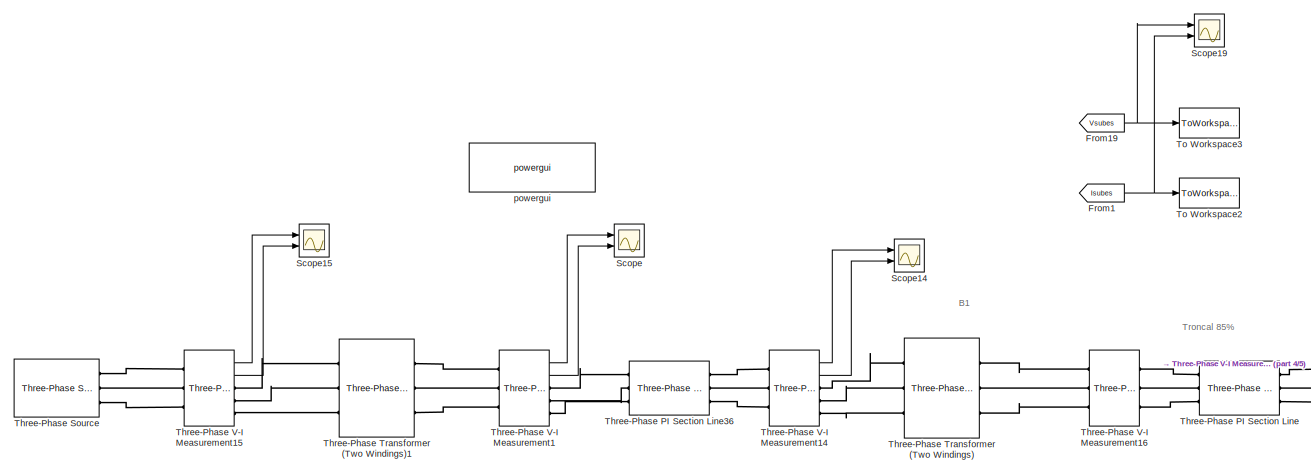
[diagram: root canvas - part 1/5, top left region]
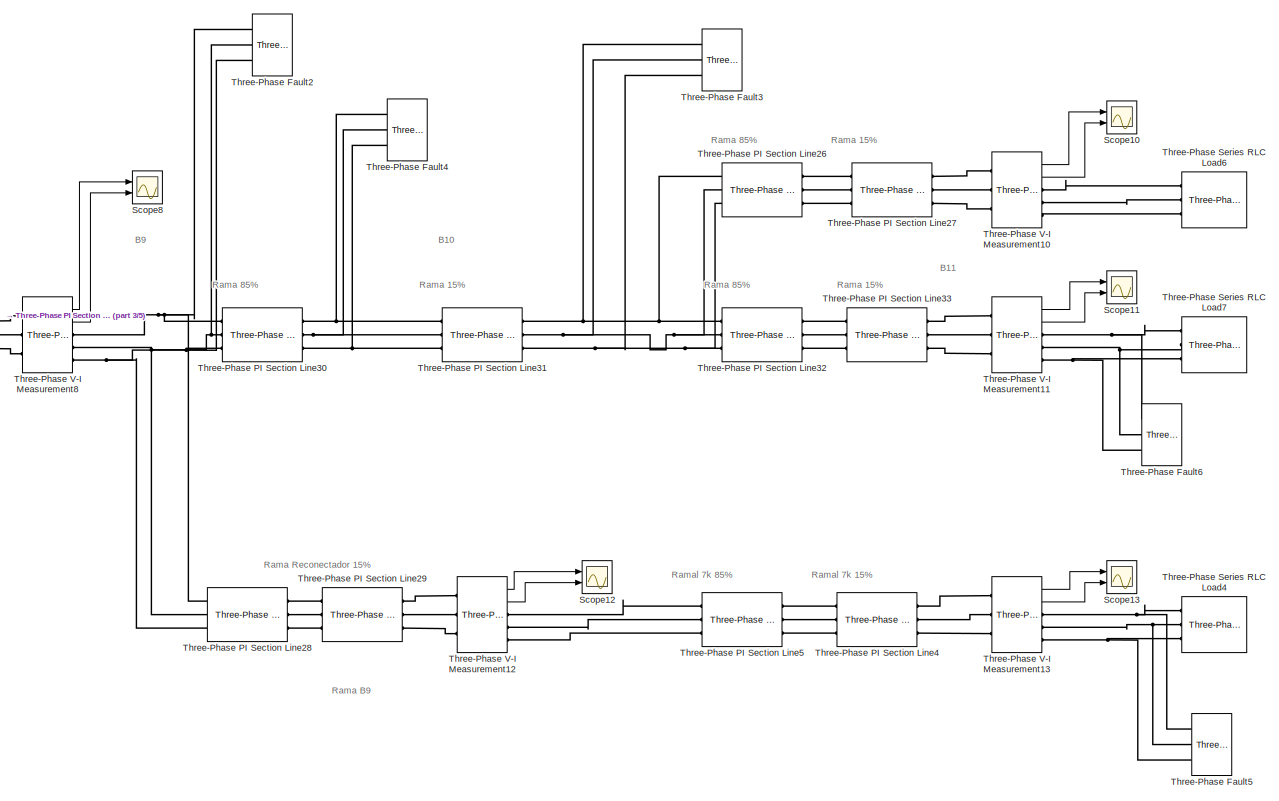
[diagram: root canvas - part 2/5, right side, full height]
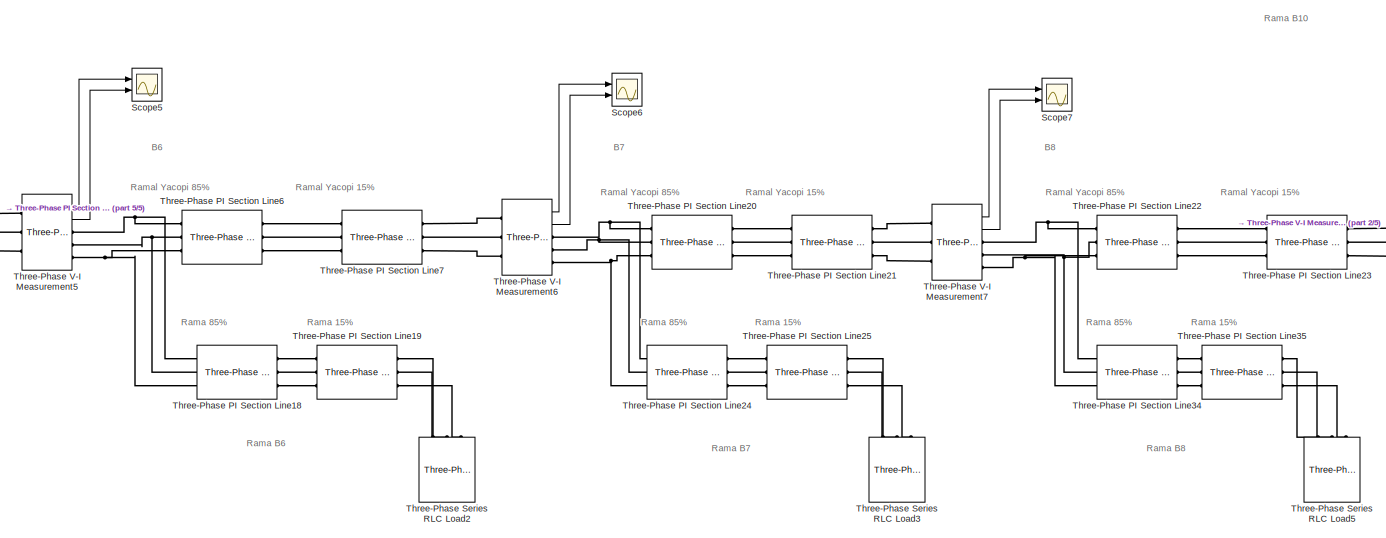
[diagram: root canvas - part 3/5, middle right region]
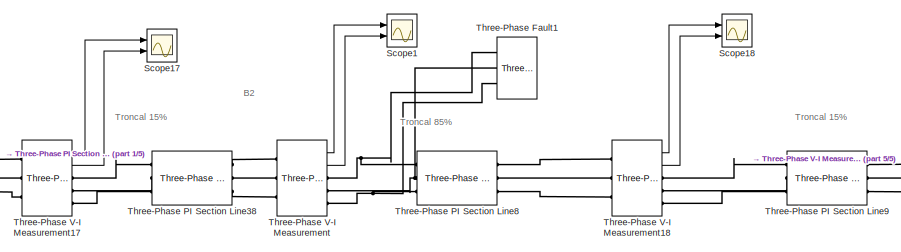
[diagram: root canvas - part 4/5, middle left region]
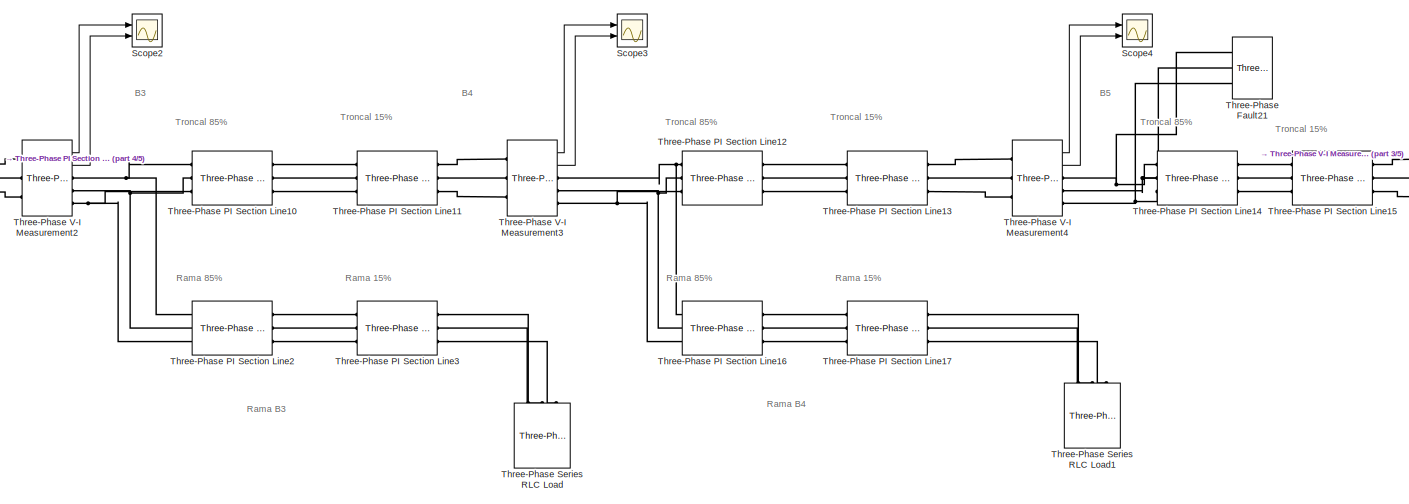
[diagram: root canvas - part 5/5, central region]
MODEL slx_1c80172d5876
KIND model
CONFIG AbsTol = auto
CONFIG FixedStep = auto
CONFIG MaxStep = auto
CONFIG MinStep = auto
CONFIG RelTol = 1e-3
CONFIG SampleTimeConstraint = Unconstrained
CONFIG Solver = ode45
CONFIG SolverMode = Auto
CONFIG SolverName = ode45
CONFIG StartTime = 0.0
CONFIG StopTime = 0.16
BLOCK [From] From1
  GotoTag = Isubes
  TagVisibility = global
BLOCK [From] From19
  GotoTag = Vsubes
  TagVisibility = global
BLOCK [Scope] Scope
  Floating = off
  NumInputPorts = 2
  Ports = [2]
  YMax = 5~5
  YMin = -5~-5
BLOCK [Scope] Scope1
  Floating = off
  NumInputPorts = 2
  Ports = [2]
  SaveName = ScopeData1
  YMax = 5~5
  YMin = -5~-5
BLOCK [Scope] Scope10
  Floating = off
  NumInputPorts = 2
  Ports = [2]
  SaveName = ScopeData10
  YMax = 5~5
  YMin = -5~-5
BLOCK [Scope] Scope11
  Floating = off
  NumInputPorts = 2
  Ports = [2]
  SaveName = ScopeData11
  YMax = 5~5
  YMin = -5~-5
BLOCK [Scope] Scope12
  Floating = off
  NumInputPorts = 2
  Ports = [2]
  SaveName = ScopeData12
  YMax = 5~5
  YMin = -5~-5
BLOCK [Scope] Scope13
  Floating = off
  NumInputPorts = 2
  Ports = [2]
  SaveName = ScopeData13
  YMax = 5~5
  YMin = -5~-5
BLOCK [Scope] Scope14
  Floating = off
  NumInputPorts = 2
  Ports = [2]
  SaveName = ScopeData14
  YMax = 5~5
  YMin = -5~-5
BLOCK [Scope] Scope15
  Floating = off
  NumInputPorts = 2
  Ports = [2]
  SaveName = ScopeData15
  YMax = 100000~1.1
  YMin = -175000~-1
BLOCK [Scope] Scope17
  Floating = off
  NumInputPorts = 2
  Ports = [2]
  SaveName = ScopeData17
  YMax = 5~5
  YMin = -5~-5
BLOCK [Scope] Scope18
  Floating = off
  NumInputPorts = 2
  Ports = [2]
  SaveName = ScopeData18
  YMax = 5~5
  YMin = -5~-5
BLOCK [Scope] Scope19
  Floating = off
  NumInputPorts = 2
  Ports = [2]
  SaveName = ScopeData19
  TimeRange = 0.03177083333333333
  YMax = 4000~5
  YMin = -4000~-5
BLOCK [Scope] Scope2
  Floating = off
  NumInputPorts = 2
  Ports = [2]
  SaveName = ScopeData2
  YMax = 5~5
  YMin = -5~-5
BLOCK [Scope] Scope3
  Floating = off
  NumInputPorts = 2
  Ports = [2]
  SaveName = ScopeData3
  YMax = 5~5
  YMin = -5~-5
BLOCK [Scope] Scope4
  Floating = off
  NumInputPorts = 2
  Ports = [2]
  SaveName = ScopeData4
  YMax = 5~5
  YMin = -5~-5
BLOCK [Scope] Scope5
  Floating = off
  NumInputPorts = 2
  Ports = [2]
  SaveName = ScopeData5
  YMax = 5~5
  YMin = -5~-5
BLOCK [Scope] Scope6
  Floating = off
  NumInputPorts = 2
  Ports = [2]
  SaveName = ScopeData6
  YMax = 5~5
  YMin = -5~-5
BLOCK [Scope] Scope7
  Floating = off
  NumInputPorts = 2
  Ports = [2]
  SaveName = ScopeData7
  YMax = 5~5
  YMin = -5~-5
BLOCK [Scope] Scope8
  Floating = off
  NumInputPorts = 2
  Ports = [2]
  SaveName = ScopeData8
  YMax = 5~5
  YMin = -5~-5
BLOCK [Reference] Three-Phase Fault1  REF=powerlib/Elements/Three-Phase Fault
  External = off
  FaultA = off
  FaultB = off
  FaultC = off
  FaultResistance = 0.010
  GroundFault = off
  GroundResistance = 0.01
  InitialStates = 0
  Measurements = None
  Ports = [0, 0, 0, 0, 0, 3]
  SnubberCapacitance = inf
  SnubberResistance = 1e6
  SourceBlock = powerlib/Elements/Three-Phase Fault
  SourceType = Three-Phase Fault
  SwitchStatus = NaN
  SwitchTimes = [3/60  6/60]
BLOCK [Reference] Three-Phase Fault2  REF=powerlib/Elements/Three-Phase Fault
  External = off
  FaultA = off
  FaultB = off
  FaultC = off
  FaultResistance = 0.01
  GroundFault = off
  GroundResistance = 0.01
  InitialStates = 0
  Measurements = None
  Ports = [0, 0, 0, 0, 0, 3]
  SnubberCapacitance = inf
  SnubberResistance = 1e6
  SourceBlock = powerlib/Elements/Three-Phase Fault
  SourceType = Three-Phase Fault
  SwitchStatus = NaN
  SwitchTimes = [3/60  6/60]
BLOCK [Reference] Three-Phase Fault21  REF=powerlib/Elements/Three-Phase Fault
  External = off
  FaultA = off
  FaultB = off
  FaultC = off
  FaultResistance = 0.001
  GroundFault = off
  GroundResistance = 0.01
  InitialStates = 0
  Measurements = None
  Ports = [0, 0, 0, 0, 0, 3]
  SnubberCapacitance = inf
  SnubberResistance = 1e6
  SourceBlock = powerlib/Elements/Three-Phase Fault
  SourceType = Three-Phase Fault
  SwitchStatus = NaN
  SwitchTimes = [3/60  6/60]
BLOCK [Reference] Three-Phase Fault3  REF=powerlib/Elements/Three-Phase Fault
  External = off
  FaultA = off
  FaultB = off
  FaultC = off
  FaultResistance = 20
  GroundFault = off
  GroundResistance = 0.01
  InitialStates = 0
  Measurements = None
  Ports = [0, 0, 0, 0, 0, 3]
  SnubberCapacitance = inf
  SnubberResistance = 1e6
  SourceBlock = powerlib/Elements/Three-Phase Fault
  SourceType = Three-Phase Fault
  SwitchStatus = NaN
  SwitchTimes = [3/60  6/60]
BLOCK [Reference] Three-Phase Fault4  REF=powerlib/Elements/Three-Phase Fault
  External = off
  FaultA = off
  FaultB = off
  FaultC = off
  FaultResistance = 0.01
  GroundFault = off
  GroundResistance = 0.01
  InitialStates = 0
  Measurements = None
  Ports = [0, 0, 0, 0, 0, 3]
  SnubberCapacitance = inf
  SnubberResistance = 1e6
  SourceBlock = powerlib/Elements/Three-Phase Fault
  SourceType = Three-Phase Fault
  SwitchStatus = NaN
  SwitchTimes = [3/60  6/60]
BLOCK [Reference] Three-Phase Fault5  REF=powerlib/Elements/Three-Phase Fault
  External = off
  FaultA = off
  FaultB = off
  FaultC = off
  FaultResistance = 5
  GroundFault = off
  GroundResistance = 0.01
  InitialStates = 0
  Measurements = None
  Ports = [0, 0, 0, 0, 0, 3]
  SnubberCapacitance = inf
  SnubberResistance = 1e6
  SourceBlock = powerlib/Elements/Three-Phase Fault
  SourceType = Three-Phase Fault
  SwitchStatus = NaN
  SwitchTimes = [3/60  6/60]
BLOCK [Reference] Three-Phase Fault6  REF=powerlib/Elements/Three-Phase Fault
  External = off
  FaultA = off
  FaultB = off
  FaultC = on
  FaultResistance = 0.001
  GroundFault = on
  GroundResistance = 0.01
  InitialStates = 0
  Measurements = None
  Ports = [0, 0, 0, 0, 0, 3]
  SnubberCapacitance = inf
  SnubberResistance = 1e6
  SourceBlock = powerlib/Elements/Three-Phase Fault
  SourceType = Three-Phase Fault
  SwitchStatus = NaN
  SwitchTimes = [3/60  6/60]
BLOCK [Reference] Three-Phase PI Section Line  REF=powerlib/Elements/Three-Phase
PI Section Line
  AttributesFormatString = \n
  Capacitances = [0.1e-12 0.1e-12]
  Frequency = 60
  Inductances = [0.001327  0.002029]
  LConnTagsString = a|b|c
  Length = 0.224281
  Ports = [0, 0, 0, 0, 0, 3, 3]
  RConnTagsString = A|B|C
  Resistances = [0.4153 0.4148]
  SourceBlock = powerlib/Elements/Three-Phase\nPI Section Line
  SourceType = Three-Phase PI Section Line
BLOCK [Reference] Three-Phase PI Section Line10  REF=powerlib/Elements/Three-Phase
PI Section Line
  AttributesFormatString = \n
  Capacitances = [0.1e-12 0.1e-12]
  Frequency = 60
  Inductances = [0.001327  0.002029]
  LConnTagsString = a|b|c
  Length = 2.627724
  Ports = [0, 0, 0, 0, 0, 3, 3]
  RConnTagsString = A|B|C
  Resistances = [ 0.4153 0.4148]
  SourceBlock = powerlib/Elements/Three-Phase\nPI Section Line
  SourceType = Three-Phase PI Section Line
BLOCK [Reference] Three-Phase PI Section Line11  REF=powerlib/Elements/Three-Phase
PI Section Line
  AttributesFormatString = \n
  Capacitances = [0.1e-12 0.1e-12]
  Frequency = 60
  Inductances = [0.001263 0.002392]
  LConnTagsString = a|b|c
  Length = 0.463716
  Ports = [0, 0, 0, 0, 0, 3, 3]
  RConnTagsString = A|B|C
  Resistances = [0.8315 0.8307]
  SourceBlock = powerlib/Elements/Three-Phase\nPI Section Line
  SourceType = Three-Phase PI Section Line
BLOCK [Reference] Three-Phase PI Section Line12  REF=powerlib/Elements/Three-Phase
PI Section Line
  AttributesFormatString = \n
  Capacitances = [0.1e-12 0.1e-12]
  Frequency = 60
  Inductances = [0.001327  0.002029]
  LConnTagsString = a|b|c
  Length = 6.782796
  Ports = [0, 0, 0, 0, 0, 3, 3]
  RConnTagsString = A|B|C
  Resistances = [ 0.4153 0.4148]
  SourceBlock = powerlib/Elements/Three-Phase\nPI Section Line
  SourceType = Three-Phase PI Section Line
BLOCK [Reference] Three-Phase PI Section Line13  REF=powerlib/Elements/Three-Phase
PI Section Line
  AttributesFormatString = \n
  Capacitances = [0.1e-12 0.1e-12]
  Frequency = 60
  Inductances = [0.001263 0.002392]
  LConnTagsString = a|b|c
  Length = 1.196964
  Ports = [0, 0, 0, 0, 0, 3, 3]
  RConnTagsString = A|B|C
  Resistances = [0.8315 0.8307]
  SourceBlock = powerlib/Elements/Three-Phase\nPI Section Line
  SourceType = Three-Phase PI Section Line
BLOCK [Reference] Three-Phase PI Section Line14  REF=powerlib/Elements/Three-Phase
PI Section Line
  AttributesFormatString = \n
  Capacitances = [0.1e-12 0.1e-12]
  Frequency = 60
  Inductances = [0.001327  0.002029]
  LConnTagsString = a|b|c
  Length = 2.529787
  Ports = [0, 0, 0, 0, 0, 3, 3]
  RConnTagsString = A|B|C
  Resistances = [ 0.4153 0.4148]
  SourceBlock = powerlib/Elements/Three-Phase\nPI Section Line
  SourceType = Three-Phase PI Section Line
BLOCK [Reference] Three-Phase PI Section Line15  REF=powerlib/Elements/Three-Phase
PI Section Line
  AttributesFormatString = \n
  Capacitances = [0.1e-12 0.1e-12]
  Frequency = 60
  Inductances = [0.001263 0.002392]
  LConnTagsString = a|b|c
  Length = 0.446433
  Ports = [0, 0, 0, 0, 0, 3, 3]
  RConnTagsString = A|B|C
  Resistances = [0.8315 0.8307]
  SourceBlock = powerlib/Elements/Three-Phase\nPI Section Line
  SourceType = Three-Phase PI Section Line
BLOCK [Reference] Three-Phase PI Section Line16  REF=powerlib/Elements/Three-Phase
PI Section Line
  AttributesFormatString = \n
  Capacitances = [0.1e-12 0.1e-12]
  Frequency = 60
  Inductances = [0.001096 0.002727]
  LConnTagsString = a|b|c
  Length = 6.782796
  Ports = [0, 0, 0, 0, 0, 3, 3]
  RConnTagsString = A|B|C
  Resistances = [0.8315 0.8307]
  SourceBlock = powerlib/Elements/Three-Phase\nPI Section Line
  SourceType = Three-Phase PI Section Line
BLOCK [Reference] Three-Phase PI Section Line17  REF=powerlib/Elements/Three-Phase
PI Section Line
  AttributesFormatString = \n
  Capacitances = [0.1e-12 0.1e-12]
  Frequency = 60
  Inductances = [0.001311 0.002296]
  LConnTagsString = a|b|c
  Length = 1.196964
  Ports = [0, 0, 0, 0, 0, 3, 3]
  RConnTagsString = A|B|C
  Resistances = [0.8315 0.8307]
  SourceBlock = powerlib/Elements/Three-Phase\nPI Section Line
  SourceType = Three-Phase PI Section Line
BLOCK [Reference] Three-Phase PI Section Line18  REF=powerlib/Elements/Three-Phase
PI Section Line
  AttributesFormatString = \n
  Capacitances = [0.1e-12 0.1e-12]
  Frequency = 60
  Inductances = [0.001096 0.002727]
  LConnTagsString = a|b|c
  Length = 6.82142765
  Ports = [0, 0, 0, 0, 0, 3, 3]
  RConnTagsString = A|B|C
  Resistances = [0.8315 0.8307]
  SourceBlock = powerlib/Elements/Three-Phase\nPI Section Line
  SourceType = Three-Phase PI Section Line
BLOCK [Reference] Three-Phase PI Section Line19  REF=powerlib/Elements/Three-Phase
PI Section Line
  AttributesFormatString = \n
  Capacitances = [0.1e-12 0.1e-12]
  Frequency = 60
  Inductances = [0.001311 0.002296]
  LConnTagsString = a|b|c
  Length = 1.203781
  Ports = [0, 0, 0, 0, 0, 3, 3]
  RConnTagsString = A|B|C
  Resistances = [0.8315 0.8307]
  SourceBlock = powerlib/Elements/Three-Phase\nPI Section Line
  SourceType = Three-Phase PI Section Line
BLOCK [Reference] Three-Phase PI Section Line2  REF=powerlib/Elements/Three-Phase
PI Section Line
  AttributesFormatString = \n
  Capacitances = [0.1e-12 0.1e-12]
  Frequency = 60
  Inductances = [0.001096 0.002727]
  LConnTagsString = a|b|c
  Length = 6.5409982
  Ports = [0, 0, 0, 0, 0, 3, 3]
  RConnTagsString = A|B|C
  Resistances = [0.8315 0.8307]
  SourceBlock = powerlib/Elements/Three-Phase\nPI Section Line
  SourceType = Three-Phase PI Section Line
BLOCK [Reference] Three-Phase PI Section Line20  REF=powerlib/Elements/Three-Phase
PI Section Line
  AttributesFormatString = \n
  Capacitances = [0.1e-12 0.1e-12]
  Frequency = 60
  Inductances = [0.001023 0.002655]
  LConnTagsString = a|b|c
  Length = 1.27075
  Ports = [0, 0, 0, 0, 0, 3, 3]
  RConnTagsString = A|B|C
  Resistances = [0.416 0.4151]
  SourceBlock = powerlib/Elements/Three-Phase\nPI Section Line
  SourceType = Three-Phase PI Section Line
BLOCK [Reference] Three-Phase PI Section Line21  REF=powerlib/Elements/Three-Phase
PI Section Line
  AttributesFormatString = \n
  Capacitances = [0.1e-12 0.1e-12]
  Frequency = 60
  Inductances = [0.001239 0.002225]
  LConnTagsString = a|b|c
  Length = 0.22425
  Ports = [0, 0, 0, 0, 0, 3, 3]
  RConnTagsString = A|B|C
  Resistances = [0.416 0.4151]
  SourceBlock = powerlib/Elements/Three-Phase\nPI Section Line
  SourceType = Three-Phase PI Section Line
BLOCK [Reference] Three-Phase PI Section Line22  REF=powerlib/Elements/Three-Phase
PI Section Line
  AttributesFormatString = \n
  Capacitances = [0.1e-12 0.1e-12]
  Frequency = 60
  Inductances = [0.001023 0.002655]
  LConnTagsString = a|b|c
  Length = 3.753243
  Ports = [0, 0, 0, 0, 0, 3, 3]
  RConnTagsString = A|B|C
  Resistances = [0.416 0.4151]
  SourceBlock = powerlib/Elements/Three-Phase\nPI Section Line
  SourceType = Three-Phase PI Section Line
BLOCK [Reference] Three-Phase PI Section Line23  REF=powerlib/Elements/Three-Phase
PI Section Line
  AttributesFormatString = \n
  Capacitances = [0.1e-12 0.1e-12]
  Frequency = 60
  Inductances = [0.001239 0.002225]
  LConnTagsString = a|b|c
  Length = 0.662337
  Ports = [0, 0, 0, 0, 0, 3, 3]
  RConnTagsString = A|B|C
  Resistances = [0.416 0.4151]
  SourceBlock = powerlib/Elements/Three-Phase\nPI Section Line
  SourceType = Three-Phase PI Section Line
BLOCK [Reference] Three-Phase PI Section Line24  REF=powerlib/Elements/Three-Phase
PI Section Line
  AttributesFormatString = \n
  Capacitances = [0.1e-12 0.1e-12]
  Frequency = 60
  Inductances = [0.001096 0.002727]
  LConnTagsString = a|b|c
  Length = 3.3978495
  Ports = [0, 0, 0, 0, 0, 3, 3]
  RConnTagsString = A|B|C
  Resistances = [0.8315 0.8307]
  SourceBlock = powerlib/Elements/Three-Phase\nPI Section Line
  SourceType = Three-Phase PI Section Line
BLOCK [Reference] Three-Phase PI Section Line25  REF=powerlib/Elements/Three-Phase
PI Section Line
  AttributesFormatString = \n
  Capacitances = [0.1e-12 0.1e-12]
  Frequency = 60
  Inductances = [0.001311 0.002296]
  LConnTagsString = a|b|c
  Length = 0.22425
  Ports = [0, 0, 0, 0, 0, 3, 3]
  RConnTagsString = A|B|C
  Resistances = [0.8315 0.8307]
  SourceBlock = powerlib/Elements/Three-Phase\nPI Section Line
  SourceType = Three-Phase PI Section Line
BLOCK [Reference] Three-Phase PI Section Line26  REF=powerlib/Elements/Three-Phase
PI Section Line
  AttributesFormatString = \n
  Capacitances = [0.1e-12 0.1e-12]
  Frequency = 60
  Inductances = [0.001096 0.002727]
  LConnTagsString = a|b|c
  Length = 6.3333585
  Ports = [0, 0, 0, 0, 0, 3, 3]
  RConnTagsString = A|B|C
  Resistances = [0.8315 0.8307]
  SourceBlock = powerlib/Elements/Three-Phase\nPI Section Line
  SourceType = Three-Phase PI Section Line
BLOCK [Reference] Three-Phase PI Section Line27  REF=powerlib/Elements/Three-Phase
PI Section Line
  AttributesFormatString = \n
  Capacitances = [0.1e-12 0.1e-12]
  Frequency = 60
  Inductances = [0.001311 0.002296]
  LConnTagsString = a|b|c
  Length = 1.117652
  Ports = [0, 0, 0, 0, 0, 3, 3]
  RConnTagsString = A|B|C
  Resistances = [0.8315 0.8307]
  SourceBlock = powerlib/Elements/Three-Phase\nPI Section Line
  SourceType = Three-Phase PI Section Line
BLOCK [Reference] Three-Phase PI Section Line28  REF=powerlib/Elements/Three-Phase
PI Section Line
  AttributesFormatString = \n
  Capacitances = [0.1e-12 0.1e-12]
  Frequency = 60
  Inductances = [0.001023 0.002655]
  LConnTagsString = a|b|c
  Length = 2.818592
  Ports = [0, 0, 0, 0, 0, 3, 3]
  RConnTagsString = A|B|C
  Resistances = [0.416 0.4151]
  SourceBlock = powerlib/Elements/Three-Phase\nPI Section Line
  SourceType = Three-Phase PI Section Line
BLOCK [Reference] Three-Phase PI Section Line29  REF=powerlib/Elements/Three-Phase
PI Section Line
  AttributesFormatString = \n
  Capacitances = [0.1e-12 0.1e-12]
  Frequency = 60
  Inductances = [0.001239 0.002225]
  LConnTagsString = a|b|c
  Length = 0.497399
  Ports = [0, 0, 0, 0, 0, 3, 3]
  RConnTagsString = A|B|C
  Resistances = [0.416 0.4151]
  SourceBlock = powerlib/Elements/Three-Phase\nPI Section Line
  SourceType = Three-Phase PI Section Line
BLOCK [Reference] Three-Phase PI Section Line3  REF=powerlib/Elements/Three-Phase
PI Section Line
  AttributesFormatString = \n
  Capacitances = [0.1e-12 0.1e-12]
  Frequency = 60
  Inductances = [0.001311 0.002296]
  LConnTagsString = a|b|c
  Length = 1.154294
  Ports = [0, 0, 0, 0, 0, 3, 3]
  RConnTagsString = A|B|C
  Resistances = [0.8315 0.8307]
  SourceBlock = powerlib/Elements/Three-Phase\nPI Section Line
  SourceType = Three-Phase PI Section Line
BLOCK [Reference] Three-Phase PI Section Line30  REF=powerlib/Elements/Three-Phase
PI Section Line
  AttributesFormatString = \n
  Capacitances = [0.1e-12 0.1e-12]
  Frequency = 60
  Inductances = [0.001096 0.002727]
  LConnTagsString = a|b|c
  Length = 3.1708145
  Ports = [0, 0, 0, 0, 0, 3, 3]
  RConnTagsString = A|B|C
  Resistances = [0.416 0.4151]
  SourceBlock = powerlib/Elements/Three-Phase\nPI Section Line
  SourceType = Three-Phase PI Section Line
BLOCK [Reference] Three-Phase PI Section Line31  REF=powerlib/Elements/Three-Phase
PI Section Line
  AttributesFormatString = \n
  Capacitances = [0.1e-12 0.1e-12]
  Frequency = 60
  Inductances = [0.001311 0.002296]
  LConnTagsString = a|b|c
  Length = 0.559556
  Ports = [0, 0, 0, 0, 0, 3, 3]
  RConnTagsString = A|B|C
  Resistances = [0.416 0.4151]
  SourceBlock = powerlib/Elements/Three-Phase\nPI Section Line
  SourceType = Three-Phase PI Section Line
BLOCK [Reference] Three-Phase PI Section Line32  REF=powerlib/Elements/Three-Phase
PI Section Line
  AttributesFormatString = \n
  Capacitances = [0.1e-12 0.1e-12]
  Frequency = 60
  Inductances = [0.001096 0.002727]
  LConnTagsString = a|b|c
  Length = 8.8518235
  Ports = [0, 0, 0, 0, 0, 3, 3]
  RConnTagsString = A|B|C
  Resistances = [0.416 0.4151]
  SourceBlock = powerlib/Elements/Three-Phase\nPI Section Line
  SourceType = Three-Phase PI Section Line
BLOCK [Reference] Three-Phase PI Section Line33  REF=powerlib/Elements/Three-Phase
PI Section Line
  AttributesFormatString = \n
  Capacitances = [0.1e-12 0.1e-12]
  Frequency = 60
  Inductances = [0.001311 0.002296]
  LConnTagsString = a|b|c
  Length = 1.562087
  Ports = [0, 0, 0, 0, 0, 3, 3]
  RConnTagsString = A|B|C
  Resistances = [0.416 0.4151]
  SourceBlock = powerlib/Elements/Three-Phase\nPI Section Line
  SourceType = Three-Phase PI Section Line
BLOCK [Reference] Three-Phase PI Section Line34  REF=powerlib/Elements/Three-Phase
PI Section Line
  AttributesFormatString = \n
  Capacitances = [0.1e-12 0.1e-12]
  Frequency = 60
  Inductances = [0.001096 0.002727]
  LConnTagsString = a|b|c
  Length = 4.8514005
  Ports = [0, 0, 0, 0, 0, 3, 3]
  RConnTagsString = A|B|C
  Resistances = [0.8315 0.8307]
  SourceBlock = powerlib/Elements/Three-Phase\nPI Section Line
  SourceType = Three-Phase PI Section Line
BLOCK [Reference] Three-Phase PI Section Line35  REF=powerlib/Elements/Three-Phase
PI Section Line
  AttributesFormatString = \n
  Capacitances = [0.1e-12 0.1e-12]
  Frequency = 60
  Inductances = [0.001311 0.002296]
  LConnTagsString = a|b|c
  Length = 0.85613
  Ports = [0, 0, 0, 0, 0, 3, 3]
  RConnTagsString = A|B|C
  Resistances = [0.8315 0.8307]
  SourceBlock = powerlib/Elements/Three-Phase\nPI Section Line
  SourceType = Three-Phase PI Section Line
BLOCK [Reference] Three-Phase PI Section Line36  REF=powerlib/Elements/Three-Phase
PI Section Line
  AttributesFormatString = \n
  Capacitances = [0.00825e-6 0.00588e-6]
  Frequency = 60
  Inductances = [ 1.3743e-3  4.2583e-3]
  LConnTagsString = a|b|c
  Length = 9
  Ports = [0, 0, 0, 0, 0, 3, 3]
  RConnTagsString = A|B|C
  Resistances = [ 0.41586 0.82784]
  SourceBlock = powerlib/Elements/Three-Phase\nPI Section Line
  SourceType = Three-Phase PI Section Line
BLOCK [Reference] Three-Phase PI Section Line38  REF=powerlib/Elements/Three-Phase
PI Section Line
  AttributesFormatString = \n
  Capacitances = [0.1e-12 0.1e-12]
  Frequency = 60
  Inductances = [0.001263 0.002392]
  LConnTagsString = a|b|c
  Length = 0.039579
  Ports = [0, 0, 0, 0, 0, 3, 3]
  RConnTagsString = A|B|C
  Resistances = [0.8315 0.8307]
  SourceBlock = powerlib/Elements/Three-Phase\nPI Section Line
  SourceType = Three-Phase PI Section Line
BLOCK [Reference] Three-Phase PI Section Line4  REF=powerlib/Elements/Three-Phase
PI Section Line
  AttributesFormatString = \n
  Capacitances = [0.1e-12 0.1e-12]
  Frequency = 60
  Inductances = [0.001263 0.002248]
  LConnTagsString = a|b|c
  Length = 1.05
  Ports = [0, 0, 0, 0, 0, 3, 3]
  RConnTagsString = A|B|C
  Resistances = [0.5235 0.5228]
  SourceBlock = powerlib/Elements/Three-Phase\nPI Section Line
  SourceType = Three-Phase PI Section Line
BLOCK [Reference] Three-Phase PI Section Line5  REF=powerlib/Elements/Three-Phase
PI Section Line
  AttributesFormatString = \n
  Capacitances = [0.1e-12 0.1e-12]
  Frequency = 60
  Inductances = [0.001048 0.002679]
  LConnTagsString = a|b|c
  Length = 5.95
  Ports = [0, 0, 0, 0, 0, 3, 3]
  RConnTagsString = A|B|C
  Resistances = [0.5238 0.523]
  SourceBlock = powerlib/Elements/Three-Phase\nPI Section Line
  SourceType = Three-Phase PI Section Line
BLOCK [Reference] Three-Phase PI Section Line6  REF=powerlib/Elements/Three-Phase
PI Section Line
  AttributesFormatString = \n
  Capacitances = [0.1e-12 0.1e-12]
  Frequency = 60
  Inductances = [0.001023 0.002655]
  LConnTagsString = a|b|c
  Length = 2.9021805
  Ports = [0, 0, 0, 0, 0, 3, 3]
  RConnTagsString = A|B|C
  Resistances = [0.416 0.4151]
  SourceBlock = powerlib/Elements/Three-Phase\nPI Section Line
  SourceType = Three-Phase PI Section Line
BLOCK [Reference] Three-Phase PI Section Line7  REF=powerlib/Elements/Three-Phase
PI Section Line
  AttributesFormatString = \n
  Capacitances = [0.1e-12 0.1e-12]
  Frequency = 60
  Inductances = [0.001239 0.002225]
  LConnTagsString = a|b|c
  Length = 0.51215
  Ports = [0, 0, 0, 0, 0, 3, 3]
  RConnTagsString = A|B|C
  Resistances = [0.416 0.4151]
  SourceBlock = powerlib/Elements/Three-Phase\nPI Section Line
  SourceType = Three-Phase PI Section Line
BLOCK [Reference] Three-Phase PI Section Line8  REF=powerlib/Elements/Three-Phase
PI Section Line
  AttributesFormatString = \n
  Capacitances = [0.1e-12 0.1e-12]
  Frequency = 60
  Inductances = [0.001327  0.002029]
  LConnTagsString = a|b|c
  Length = 8.4235221
  Ports = [0, 0, 0, 0, 0, 3, 3]
  RConnTagsString = A|B|C
  Resistances = [0.4153 0.4148]
  SourceBlock = powerlib/Elements/Three-Phase\nPI Section Line
  SourceType = Three-Phase PI Section Line
BLOCK [Reference] Three-Phase PI Section Line9  REF=powerlib/Elements/Three-Phase
PI Section Line
  AttributesFormatString = \n
  Capacitances = [0.1e-12 0.1e-12]
  Frequency = 60
  Inductances = [0.001263 0.002392]
  LConnTagsString = a|b|c
  Length = 1.486504
  Ports = [0, 0, 0, 0, 0, 3, 3]
  RConnTagsString = A|B|C
  Resistances = [0.8315 0.8307]
  SourceBlock = powerlib/Elements/Three-Phase\nPI Section Line
  SourceType = Three-Phase PI Section Line
BLOCK [Reference] Three-Phase Series RLC Load  REF=powerlib/Elements/Three-Phase
Series RLC Load
  ActivePower = 7330
  AttributesFormatString = \n
  CapacitivePower = 0
  Configuration = Y (grounded)
  InductivePower = 2140
  LConnTagsString = A|B|C
  LoadType = constant PQ
  Measurements = Branch voltages and currents
  NominalFrequency = 60
  NominalVoltage = Vbas
  Ports = [0, 0, 0, 0, 0, 3]
  SourceBlock = powerlib/Elements/Three-Phase\nSeries RLC Load
  SourceType = Three-Phase Series RLC Load
BLOCK [Reference] Three-Phase Series RLC Load1  REF=powerlib/Elements/Three-Phase
Series RLC Load
  ActivePower = 16060
  AttributesFormatString = \n
  CapacitivePower = 0
  Configuration = Y (grounded)
  InductivePower = 4690
  LConnTagsString = A|B|C
  LoadType = constant Z
  Measurements = Branch voltages and currents
  NominalFrequency = 60
  NominalVoltage = Vbas
  Ports = [0, 0, 0, 0, 0, 3]
  SourceBlock = powerlib/Elements/Three-Phase\nSeries RLC Load
  SourceType = Three-Phase Series RLC Load
BLOCK [Reference] Three-Phase Series RLC Load2  REF=powerlib/Elements/Three-Phase
Series RLC Load
  ActivePower = 5120
  AttributesFormatString = \n
  CapacitivePower = 0
  Configuration = Y (grounded)
  InductivePower = 1490
  LConnTagsString = A|B|C
  LoadType = constant Z
  Measurements = Branch voltages and currents
  NominalFrequency = 60
  NominalVoltage = Vbas
  Ports = [0, 0, 0, 0, 0, 3]
  SourceBlock = powerlib/Elements/Three-Phase\nSeries RLC Load
  SourceType = Three-Phase Series RLC Load
BLOCK [Reference] Three-Phase Series RLC Load3  REF=powerlib/Elements/Three-Phase
Series RLC Load
  ActivePower = 10240
  AttributesFormatString = \n
  CapacitivePower = 0
  Configuration = Y (grounded)
  InductivePower = 2990
  LConnTagsString = A|B|C
  LoadType = constant Z
  Measurements = Branch voltages and currents
  NominalFrequency = 60
  NominalVoltage = Vbas
  Ports = [0, 0, 0, 0, 0, 3]
  SourceBlock = powerlib/Elements/Three-Phase\nSeries RLC Load
  SourceType = Three-Phase Series RLC Load
BLOCK [Reference] Three-Phase Series RLC Load4  REF=powerlib/Elements/Three-Phase
Series RLC Load
  ActivePower = 9430
  AttributesFormatString = \n
  CapacitivePower = 0
  Configuration = Y (grounded)
  InductivePower = 2750
  LConnTagsString = A|B|C
  LoadType = constant Z
  Measurements = Branch voltages and currents
  NominalFrequency = 60
  NominalVoltage = Vbas
  Ports = [0, 0, 0, 0, 0, 3]
  SourceBlock = powerlib/Elements/Three-Phase\nSeries RLC Load
  SourceType = Three-Phase Series RLC Load
BLOCK [Reference] Three-Phase Series RLC Load5  REF=powerlib/Elements/Three-Phase
Series RLC Load
  ActivePower = 28640
  AttributesFormatString = \n
  CapacitivePower = 0
  Configuration = Y (grounded)
  InductivePower = 8350
  LConnTagsString = A|B|C
  LoadType = constant Z
  Measurements = Branch voltages and currents
  NominalFrequency = 60
  NominalVoltage = Vbas
  Ports = [0, 0, 0, 0, 0, 3]
  SourceBlock = powerlib/Elements/Three-Phase\nSeries RLC Load
  SourceType = Three-Phase Series RLC Load
BLOCK [Reference] Three-Phase Series RLC Load6  REF=powerlib/Elements/Three-Phase
Series RLC Load
  ActivePower = 10130
  AttributesFormatString = \n
  CapacitivePower = 0
  Configuration = Y (grounded)
  InductivePower = 2950
  LConnTagsString = A|B|C
  LoadType = constant Z
  Measurements = Branch voltages and currents
  NominalFrequency = 60
  NominalVoltage = Vbas
  Ports = [0, 0, 0, 0, 0, 3]
  SourceBlock = powerlib/Elements/Three-Phase\nSeries RLC Load
  SourceType = Three-Phase Series RLC Load
BLOCK [Reference] Three-Phase Series RLC Load7  REF=powerlib/Elements/Three-Phase
Series RLC Load
  ActivePower = 6980
  AttributesFormatString = \n
  CapacitivePower = 0
  Configuration = Y (grounded)
  InductivePower = 2040
  LConnTagsString = A|B|C
  LoadType = constant Z
  Measurements = Branch voltages and currents
  NominalFrequency = 60
  NominalVoltage = Vbas
  Ports = [0, 0, 0, 0, 0, 3]
  SourceBlock = powerlib/Elements/Three-Phase\nSeries RLC Load
  SourceType = Three-Phase Series RLC Load
BLOCK [Reference] Three-Phase Source  REF=powerlib/Electrical
Sources/Three-Phase Source
  BaseVoltage = 115000
  BusType = swing
  Frequency = 60
  Inductance = 16.58e-3
  InternalConnection = Yg
  PhaseAngle = 0
  Ports = [0, 0, 0, 0, 0, 0, 3]
  Pref = 0
  Qmax = inf
  Qmin = -inf
  Qref = 0
  Resistance = 0.8929
  ShortCircuitLevel = 100e6
  SourceBlock = powerlib/Electrical\nSources/Three-Phase Source
  SourceType = Three-Phase Source
  SpecifyImpedance = on
  Voltage = 115000
  XRratio = 7
BLOCK [Reference] Three-Phase Transformer (Two Windings)  REF=powerlib/Elements/Three-Phase
Transformer
(Two Windings)
  BreakLoop = off
  CoreType = Three single-phase transformers
  DataFile = 'hysteresis'
  DataType = off
  Hysteresis = off
  InitialFluxes = [ 0.8 , -0.8 , 0.7 ]
  L0 = 0.5
  Lm = 500
  Measurements = None
  MoreParameters = off
  NominalPower = [Sb , 60 ]
  Ports = [0, 0, 0, 0, 0, 3, 3]
  Rm = 500
  Saturation = [ 0,0 ; 0.0024,1.2 ; 1.0,1.52 ]
  SetInitialFlux = off
  SetSaturation = off
  SourceBlock = powerlib/Elements/Three-Phase\nTransformer\n(Two Windings)
  SourceType = Three-Phase Transformer (Two Windings)
  TransfoNumber = 1
  UNITS = pu
  Winding1 = [ 34500 , 0 , 0.0273 ]
  Winding1Connection = Yg
  Winding2 = [Vbas , 0 , 0.0273 ]
  Winding2Connection = Yg
BLOCK [Reference] Three-Phase Transformer (Two Windings)1  REF=powerlib/Elements/Three-Phase
Transformer
(Two Windings)
  BreakLoop = off
  CoreType = Three single-phase transformers
  DataFile = 'hysteresis'
  DataType = off
  Hysteresis = off
  InitialFluxes = [ 0.8 , -0.8 , 0.7 ]
  L0 = 0.5
  Lm = 500
  Measurements = None
  MoreParameters = off
  NominalPower = [ 40e6 , 60 ]
  Ports = [0, 0, 0, 0, 0, 3, 3]
  Rm = 500
  Saturation = [ 0,0 ; 0.0024,1.2 ; 1.0,1.52 ]
  SetInitialFlux = off
  SetSaturation = off
  SourceBlock = powerlib/Elements/Three-Phase\nTransformer\n(Two Windings)
  SourceType = Three-Phase Transformer (Two Windings)
  TransfoNumber = 1
  UNITS = pu
  Winding1 = [ 115000 , 0 , 0.06 ]
  Winding1Connection = Yg
  Winding2 = [ 34500 , 0 , 0.06 ]
  Winding2Connection = Yg
BLOCK [Reference] Three-Phase V-I Measurement  REF=powerlib/Measurements/Three-Phase
V-I Measurement
  CurrentMeasurement = yes
  Ipu = off
  LabelI = Iabc
  LabelV = Vabc
  OutputType = Complex
  PSBequivalent = 0
  Pbase = 100e6
  PhasorSimulation = off
  Ports = [0, 2, 0, 0, 0, 3, 3]
  SetLabelI = off
  SetLabelV = off
  SourceBlock = powerlib/Measurements/Three-Phase\nV-I Measurement
  SourceType = Three-Phase VI Measurement
  Vbase = 500e3
  VoltageMeasurement = phase-to-phase
  Vpu = off
  VpuLL = off
BLOCK [Reference] Three-Phase V-I Measurement1  REF=powerlib/Measurements/Three-Phase
V-I Measurement
  CurrentMeasurement = yes
  Ipu = off
  LabelI = Iabc
  LabelV = Vabc
  OutputType = Complex
  PSBequivalent = 0
  Pbase = 100e6
  PhasorSimulation = off
  Ports = [0, 2, 0, 0, 0, 3, 3]
  SetLabelI = off
  SetLabelV = off
  SourceBlock = powerlib/Measurements/Three-Phase\nV-I Measurement
  SourceType = Three-Phase VI Measurement
  Vbase = 500e3
  VoltageMeasurement = phase-to-phase
  Vpu = off
  VpuLL = off
BLOCK [Reference] Three-Phase V-I Measurement10  REF=powerlib/Measurements/Three-Phase
V-I Measurement
  CurrentMeasurement = yes
  Ipu = off
  LabelI = Iabc
  LabelV = Vabc
  OutputType = Complex
  PSBequivalent = 0
  Pbase = 100e6
  PhasorSimulation = off
  Ports = [0, 2, 0, 0, 0, 3, 3]
  SetLabelI = off
  SetLabelV = off
  SourceBlock = powerlib/Measurements/Three-Phase\nV-I Measurement
  SourceType = Three-Phase VI Measurement
  Vbase = 500e3
  VoltageMeasurement = phase-to-phase
  Vpu = off
  VpuLL = off
BLOCK [Reference] Three-Phase V-I Measurement11  REF=powerlib/Measurements/Three-Phase
V-I Measurement
  CurrentMeasurement = yes
  Ipu = off
  LabelI = Iabc
  LabelV = Vabc
  OutputType = Complex
  PSBequivalent = 0
  Pbase = 100e6
  PhasorSimulation = off
  Ports = [0, 2, 0, 0, 0, 3, 3]
  SetLabelI = off
  SetLabelV = off
  SourceBlock = powerlib/Measurements/Three-Phase\nV-I Measurement
  SourceType = Three-Phase VI Measurement
  Vbase = 500e3
  VoltageMeasurement = phase-to-phase
  Vpu = off
  VpuLL = off
BLOCK [Reference] Three-Phase V-I Measurement12  REF=powerlib/Measurements/Three-Phase
V-I Measurement
  CurrentMeasurement = yes
  Ipu = off
  LabelI = Iabc
  LabelV = Vabc
  OutputType = Complex
  PSBequivalent = 0
  Pbase = 100e6
  PhasorSimulation = off
  Ports = [0, 2, 0, 0, 0, 3, 3]
  SetLabelI = off
  SetLabelV = off
  SourceBlock = powerlib/Measurements/Three-Phase\nV-I Measurement
  SourceType = Three-Phase VI Measurement
  Vbase = 500e3
  VoltageMeasurement = phase-to-phase
  Vpu = off
  VpuLL = off
BLOCK [Reference] Three-Phase V-I Measurement13  REF=powerlib/Measurements/Three-Phase
V-I Measurement
  CurrentMeasurement = yes
  Ipu = off
  LabelI = Iabc
  LabelV = Vabc
  OutputType = Complex
  PSBequivalent = 0
  Pbase = 100e6
  PhasorSimulation = off
  Ports = [0, 2, 0, 0, 0, 3, 3]
  SetLabelI = off
  SetLabelV = off
  SourceBlock = powerlib/Measurements/Three-Phase\nV-I Measurement
  SourceType = Three-Phase VI Measurement
  Vbase = 500e3
  VoltageMeasurement = phase-to-phase
  Vpu = off
  VpuLL = off
BLOCK [Reference] Three-Phase V-I Measurement14  REF=powerlib/Measurements/Three-Phase
V-I Measurement
  CurrentMeasurement = yes
  Ipu = off
  LabelI = Iabc
  LabelV = Vabc
  OutputType = Complex
  PSBequivalent = 0
  Pbase = 100e6
  PhasorSimulation = off
  Ports = [0, 2, 0, 0, 0, 3, 3]
  SetLabelI = off
  SetLabelV = off
  SourceBlock = powerlib/Measurements/Three-Phase\nV-I Measurement
  SourceType = Three-Phase VI Measurement
  Vbase = 500e3
  VoltageMeasurement = phase-to-phase
  Vpu = off
  VpuLL = off
BLOCK [Reference] Three-Phase V-I Measurement15  REF=powerlib/Measurements/Three-Phase
V-I Measurement
  CurrentMeasurement = yes
  Ipu = off
  LabelI = Iabc
  LabelV = Vabc
  OutputType = Complex
  PSBequivalent = 0
  Pbase = 100e6
  PhasorSimulation = off
  Ports = [0, 2, 0, 0, 0, 3, 3]
  SetLabelI = off
  SetLabelV = off
  SourceBlock = powerlib/Measurements/Three-Phase\nV-I Measurement
  SourceType = Three-Phase VI Measurement
  Vbase = 500e3
  VoltageMeasurement = phase-to-phase
  Vpu = off
  VpuLL = off
BLOCK [Reference] Three-Phase V-I Measurement16  REF=powerlib/Measurements/Three-Phase
V-I Measurement
  CurrentMeasurement = yes
  Ipu = off
  LabelI = Isubes
  LabelV = Vsubes
  OutputType = Complex
  PSBequivalent = 0
  Pbase = 100e6
  PhasorSimulation = off
  Ports = [0, 0, 0, 0, 0, 3, 3]
  SetLabelI = on
  SetLabelV = on
  SourceBlock = powerlib/Measurements/Three-Phase\nV-I Measurement
  SourceType = Three-Phase VI Measurement
  Vbase = 500e3
  VoltageMeasurement = phase-to-ground
  Vpu = off
  VpuLL = off
BLOCK [Reference] Three-Phase V-I Measurement17  REF=powerlib/Measurements/Three-Phase
V-I Measurement
  CurrentMeasurement = yes
  Ipu = off
  LabelI = Iabc
  LabelV = Vabc
  OutputType = Complex
  PSBequivalent = 0
  Pbase = 100e6
  PhasorSimulation = off
  Ports = [0, 2, 0, 0, 0, 3, 3]
  SetLabelI = off
  SetLabelV = off
  SourceBlock = powerlib/Measurements/Three-Phase\nV-I Measurement
  SourceType = Three-Phase VI Measurement
  Vbase = 500e3
  VoltageMeasurement = phase-to-phase
  Vpu = off
  VpuLL = off
BLOCK [Reference] Three-Phase V-I Measurement18  REF=powerlib/Measurements/Three-Phase
V-I Measurement
  CurrentMeasurement = yes
  Ipu = off
  LabelI = Iabc
  LabelV = Vabc
  OutputType = Complex
  PSBequivalent = 0
  Pbase = 100e6
  PhasorSimulation = off
  Ports = [0, 2, 0, 0, 0, 3, 3]
  SetLabelI = off
  SetLabelV = off
  SourceBlock = powerlib/Measurements/Three-Phase\nV-I Measurement
  SourceType = Three-Phase VI Measurement
  Vbase = 500e3
  VoltageMeasurement = phase-to-phase
  Vpu = off
  VpuLL = off
BLOCK [Reference] Three-Phase V-I Measurement2  REF=powerlib/Measurements/Three-Phase
V-I Measurement
  CurrentMeasurement = yes
  Ipu = off
  LabelI = Iabc
  LabelV = Vabc
  OutputType = Complex
  PSBequivalent = 0
  Pbase = 100e6
  PhasorSimulation = off
  Ports = [0, 2, 0, 0, 0, 3, 3]
  SetLabelI = off
  SetLabelV = off
  SourceBlock = powerlib/Measurements/Three-Phase\nV-I Measurement
  SourceType = Three-Phase VI Measurement
  Vbase = 500e3
  VoltageMeasurement = phase-to-phase
  Vpu = off
  VpuLL = off
BLOCK [Reference] Three-Phase V-I Measurement3  REF=powerlib/Measurements/Three-Phase
V-I Measurement
  CurrentMeasurement = yes
  Ipu = off
  LabelI = Iabc
  LabelV = Vabc
  OutputType = Complex
  PSBequivalent = 0
  Pbase = 100e6
  PhasorSimulation = off
  Ports = [0, 2, 0, 0, 0, 3, 3]
  SetLabelI = off
  SetLabelV = off
  SourceBlock = powerlib/Measurements/Three-Phase\nV-I Measurement
  SourceType = Three-Phase VI Measurement
  Vbase = 500e3
  VoltageMeasurement = phase-to-phase
  Vpu = off
  VpuLL = off
BLOCK [Reference] Three-Phase V-I Measurement4  REF=powerlib/Measurements/Three-Phase
V-I Measurement
  CurrentMeasurement = yes
  Ipu = off
  LabelI = Iabc
  LabelV = Vabc
  OutputType = Complex
  PSBequivalent = 0
  Pbase = 100e6
  PhasorSimulation = off
  Ports = [0, 2, 0, 0, 0, 3, 3]
  SetLabelI = off
  SetLabelV = off
  SourceBlock = powerlib/Measurements/Three-Phase\nV-I Measurement
  SourceType = Three-Phase VI Measurement
  Vbase = 500e3
  VoltageMeasurement = phase-to-phase
  Vpu = off
  VpuLL = off
BLOCK [Reference] Three-Phase V-I Measurement5  REF=powerlib/Measurements/Three-Phase
V-I Measurement
  CurrentMeasurement = yes
  Ipu = off
  LabelI = Iabc
  LabelV = Vabc
  OutputType = Complex
  PSBequivalent = 0
  Pbase = 100e6
  PhasorSimulation = off
  Ports = [0, 2, 0, 0, 0, 3, 3]
  SetLabelI = off
  SetLabelV = off
  SourceBlock = powerlib/Measurements/Three-Phase\nV-I Measurement
  SourceType = Three-Phase VI Measurement
  Vbase = 500e3
  VoltageMeasurement = phase-to-phase
  Vpu = off
  VpuLL = off
BLOCK [Reference] Three-Phase V-I Measurement6  REF=powerlib/Measurements/Three-Phase
V-I Measurement
  CurrentMeasurement = yes
  Ipu = off
  LabelI = Iabc
  LabelV = Vabc
  OutputType = Complex
  PSBequivalent = 0
  Pbase = 100e6
  PhasorSimulation = off
  Ports = [0, 2, 0, 0, 0, 3, 3]
  SetLabelI = off
  SetLabelV = off
  SourceBlock = powerlib/Measurements/Three-Phase\nV-I Measurement
  SourceType = Three-Phase VI Measurement
  Vbase = 500e3
  VoltageMeasurement = phase-to-phase
  Vpu = off
  VpuLL = off
BLOCK [Reference] Three-Phase V-I Measurement7  REF=powerlib/Measurements/Three-Phase
V-I Measurement
  CurrentMeasurement = yes
  Ipu = off
  LabelI = Iabc
  LabelV = Vabc
  OutputType = Complex
  PSBequivalent = 0
  Pbase = 100e6
  PhasorSimulation = off
  Ports = [0, 2, 0, 0, 0, 3, 3]
  SetLabelI = off
  SetLabelV = off
  SourceBlock = powerlib/Measurements/Three-Phase\nV-I Measurement
  SourceType = Three-Phase VI Measurement
  Vbase = 500e3
  VoltageMeasurement = phase-to-phase
  Vpu = off
  VpuLL = off
BLOCK [Reference] Three-Phase V-I Measurement8  REF=powerlib/Measurements/Three-Phase
V-I Measurement
  CurrentMeasurement = yes
  Ipu = off
  LabelI = Iabc
  LabelV = Vabc
  OutputType = Complex
  PSBequivalent = 0
  Pbase = 100e6
  PhasorSimulation = off
  Ports = [0, 2, 0, 0, 0, 3, 3]
  SetLabelI = off
  SetLabelV = off
  SourceBlock = powerlib/Measurements/Three-Phase\nV-I Measurement
  SourceType = Three-Phase VI Measurement
  Vbase = 500e3
  VoltageMeasurement = phase-to-phase
  Vpu = off
  VpuLL = off
BLOCK [ToWorkspace] To Workspace2
  FixptAsFi = on
  MaxDataPoints = inf
  Ports = [1]
  SampleTime = -1
  Save2DSignal = 3-D array (concatenate along third dimension)
  VariableName = Isubes
BLOCK [ToWorkspace] To Workspace3
  FixptAsFi = on
  MaxDataPoints = inf
  Ports = [1]
  SampleTime = -1
  Save2DSignal = 3-D array (concatenate along third dimension)
  VariableName = Vsubes
BLOCK [Reference] powergui  REF=powerlib/powergui
  DisableRonSwitches = off
  DisableSnubberDevices = off
  DisableVfSwitches = off
  DisplayEquations = off
  DisplayStyle = 1
  EnableUseOfTLC = off
  ErrMax = 1e-4
  Frange = [0:2:500]
  FreqAxis = off
  FunctionMessages = off
  HookPort = off
  Interpol = off
  Iterations = 100
  MaxFrequency = 1000
  Pbase = 100e6
  Ports = []
  Priority = 1
  ResistiveCurrentMeasurement = off
  RestoreLinks = warning
  RmsSteady = 1
  SPID = off
  SampleTime = 5.208333e-4
  ShowGrid = off
  SolverType = Tustin
  SourceBlock = powerlib/powergui
  SourceType = PSB option menu block
  StartTime = 0.0
  SwTol = 0
  Ts = 0
  UnitsV = kV
  UnitsW = MW
  UserDataPersistent = on
  Xlog = on
  Ylog = off
  ZoomFFT = off
  buscounter = 0
  cycles = 1
  display = off
  echomessages = off
  frequency = 60
  frequencyindice = 0
  frequencyindicesteady = 1
  fundamental = 60
  methode = off
  save = off
  structure = 0
  variable = ZData
  x0status = blocks
ANNOTATION (root): B1
ANNOTATION (root): B10
ANNOTATION (root): B11
ANNOTATION (root): B2
ANNOTATION (root): B3
ANNOTATION (root): B4
ANNOTATION (root): B5
ANNOTATION (root): B6
ANNOTATION (root): B7
ANNOTATION (root): B8
ANNOTATION (root): B9
ANNOTATION (root): Rama 15%
ANNOTATION (root): Rama 85%
ANNOTATION (root): Rama B10
ANNOTATION (root): Rama B3
ANNOTATION (root): Rama B4
ANNOTATION (root): Rama B6
ANNOTATION (root): Rama B7
ANNOTATION (root): Rama B8
ANNOTATION (root): Rama B9
ANNOTATION (root): Rama Reconectador 15%
ANNOTATION (root): Ramal 7k 15%
ANNOTATION (root): Ramal 7k 85%
ANNOTATION (root): Ramal Yacopi 15%
ANNOTATION (root): Ramal Yacopi 85%
ANNOTATION (root): Troncal 15%
ANNOTATION (root): Troncal 85%
NET From19:1 -> Scope19:1, To Workspace3:1
NET From1:1 -> Scope19:2, To Workspace2:1
LINE Three-Phase V-I Measurement10:1 -> Scope10:1
LINE Three-Phase V-I Measurement10:2 -> Scope10:2
LINE Three-Phase V-I Measurement11:1 -> Scope11:1
LINE Three-Phase V-I Measurement11:2 -> Scope11:2
LINE Three-Phase V-I Measurement12:1 -> Scope12:1
LINE Three-Phase V-I Measurement12:2 -> Scope12:2
LINE Three-Phase V-I Measurement13:1 -> Scope13:1
LINE Three-Phase V-I Measurement13:2 -> Scope13:2
LINE Three-Phase V-I Measurement14:1 -> Scope14:1
LINE Three-Phase V-I Measurement14:2 -> Scope14:2
LINE Three-Phase V-I Measurement15:1 -> Scope15:1
LINE Three-Phase V-I Measurement15:2 -> Scope15:2
LINE Three-Phase V-I Measurement17:1 -> Scope17:1
LINE Three-Phase V-I Measurement17:2 -> Scope17:2
LINE Three-Phase V-I Measurement18:1 -> Scope18:1
LINE Three-Phase V-I Measurement18:2 -> Scope18:2
LINE Three-Phase V-I Measurement1:1 -> Scope:1
LINE Three-Phase V-I Measurement1:2 -> Scope:2
LINE Three-Phase V-I Measurement2:1 -> Scope2:1
LINE Three-Phase V-I Measurement2:2 -> Scope2:2
LINE Three-Phase V-I Measurement3:1 -> Scope3:1
LINE Three-Phase V-I Measurement3:2 -> Scope3:2
LINE Three-Phase V-I Measurement4:1 -> Scope4:1
LINE Three-Phase V-I Measurement4:2 -> Scope4:2
LINE Three-Phase V-I Measurement5:1 -> Scope5:1
LINE Three-Phase V-I Measurement5:2 -> Scope5:2
LINE Three-Phase V-I Measurement6:1 -> Scope6:1
LINE Three-Phase V-I Measurement6:2 -> Scope6:2
LINE Three-Phase V-I Measurement7:1 -> Scope7:1
LINE Three-Phase V-I Measurement7:2 -> Scope7:2
LINE Three-Phase V-I Measurement8:1 -> Scope8:1
LINE Three-Phase V-I Measurement8:2 -> Scope8:2
LINE Three-Phase V-I Measurement:1 -> Scope1:1
LINE Three-Phase V-I Measurement:2 -> Scope1:2
PNET net1: Three-Phase Fault1:LConn1 -- Three-Phase PI Section Line8:LConn1 -- Three-Phase V-I Measurement:RConn1
PNET net2: Three-Phase Fault1:LConn2 -- Three-Phase PI Section Line8:LConn2 -- Three-Phase V-I Measurement:RConn2
PNET net3: Three-Phase Fault1:LConn3 -- Three-Phase PI Section Line8:LConn3 -- Three-Phase V-I Measurement:RConn3
PNET net4: Three-Phase Fault21:LConn1 -- Three-Phase PI Section Line14:LConn1 -- Three-Phase V-I Measurement4:RConn1
PNET net5: Three-Phase Fault21:LConn2 -- Three-Phase PI Section Line14:LConn2 -- Three-Phase V-I Measurement4:RConn2
PNET net6: Three-Phase Fault21:LConn3 -- Three-Phase PI Section Line14:LConn3 -- Three-Phase V-I Measurement4:RConn3
PNET net7: Three-Phase Fault2:LConn1 -- Three-Phase PI Section Line28:LConn1 -- Three-Phase PI Section Line30:LConn1 -- Three-Phase V-I Measurement8:RConn1
PNET net8: Three-Phase Fault2:LConn2 -- Three-Phase PI Section Line28:LConn2 -- Three-Phase PI Section Line30:LConn2 -- Three-Phase V-I Measurement8:RConn2
PNET net9: Three-Phase Fault2:LConn3 -- Three-Phase PI Section Line28:LConn3 -- Three-Phase PI Section Line30:LConn3 -- Three-Phase V-I Measurement8:RConn3
PNET net10: Three-Phase Fault3:LConn1 -- Three-Phase PI Section Line26:LConn1 -- Three-Phase PI Section Line31:RConn1 -- Three-Phase PI Section Line32:LConn1
PNET net11: Three-Phase Fault3:LConn2 -- Three-Phase PI Section Line26:LConn2 -- Three-Phase PI Section Line31:RConn2 -- Three-Phase PI Section Line32:LConn2
PNET net12: Three-Phase Fault3:LConn3 -- Three-Phase PI Section Line26:LConn3 -- Three-Phase PI Section Line31:RConn3 -- Three-Phase PI Section Line32:LConn3
PNET net13: Three-Phase Fault4:LConn1 -- Three-Phase PI Section Line30:RConn1 -- Three-Phase PI Section Line31:LConn1
PNET net14: Three-Phase Fault4:LConn2 -- Three-Phase PI Section Line30:RConn2 -- Three-Phase PI Section Line31:LConn2
PNET net15: Three-Phase Fault4:LConn3 -- Three-Phase PI Section Line30:RConn3 -- Three-Phase PI Section Line31:LConn3
PNET net16: Three-Phase Fault5:LConn1 -- Three-Phase Series RLC Load4:LConn1 -- Three-Phase V-I Measurement13:RConn1
PNET net17: Three-Phase Fault5:LConn2 -- Three-Phase Series RLC Load4:LConn2 -- Three-Phase V-I Measurement13:RConn2
PNET net18: Three-Phase Fault5:LConn3 -- Three-Phase Series RLC Load4:LConn3 -- Three-Phase V-I Measurement13:RConn3
PNET net19: Three-Phase Fault6:LConn1 -- Three-Phase Series RLC Load7:LConn1 -- Three-Phase V-I Measurement11:RConn1
PNET net20: Three-Phase Fault6:LConn2 -- Three-Phase Series RLC Load7:LConn2 -- Three-Phase V-I Measurement11:RConn2
PNET net21: Three-Phase Fault6:LConn3 -- Three-Phase Series RLC Load7:LConn3 -- Three-Phase V-I Measurement11:RConn3
PNET net22: Three-Phase PI Section Line10:LConn1 -- Three-Phase PI Section Line2:LConn1 -- Three-Phase V-I Measurement2:RConn1
PNET net23: Three-Phase PI Section Line10:LConn2 -- Three-Phase PI Section Line2:LConn2 -- Three-Phase V-I Measurement2:RConn2
PNET net24: Three-Phase PI Section Line10:LConn3 -- Three-Phase PI Section Line2:LConn3 -- Three-Phase V-I Measurement2:RConn3
PLINE Three-Phase PI Section Line10:RConn1 -- Three-Phase PI Section Line11:LConn1
PLINE Three-Phase PI Section Line10:RConn2 -- Three-Phase PI Section Line11:LConn2
PLINE Three-Phase PI Section Line10:RConn3 -- Three-Phase PI Section Line11:LConn3
PLINE Three-Phase PI Section Line11:RConn1 -- Three-Phase V-I Measurement3:LConn1
PLINE Three-Phase PI Section Line11:RConn2 -- Three-Phase V-I Measurement3:LConn2
PLINE Three-Phase PI Section Line11:RConn3 -- Three-Phase V-I Measurement3:LConn3
PNET net25: Three-Phase PI Section Line12:LConn1 -- Three-Phase PI Section Line16:LConn1 -- Three-Phase V-I Measurement3:RConn1
PNET net26: Three-Phase PI Section Line12:LConn2 -- Three-Phase PI Section Line16:LConn2 -- Three-Phase V-I Measurement3:RConn2
PNET net27: Three-Phase PI Section Line12:LConn3 -- Three-Phase PI Section Line16:LConn3 -- Three-Phase V-I Measurement3:RConn3
PLINE Three-Phase PI Section Line12:RConn1 -- Three-Phase PI Section Line13:LConn1
PLINE Three-Phase PI Section Line12:RConn2 -- Three-Phase PI Section Line13:LConn2
PLINE Three-Phase PI Section Line12:RConn3 -- Three-Phase PI Section Line13:LConn3
PLINE Three-Phase PI Section Line13:RConn1 -- Three-Phase V-I Measurement4:LConn1
PLINE Three-Phase PI Section Line13:RConn2 -- Three-Phase V-I Measurement4:LConn2
PLINE Three-Phase PI Section Line13:RConn3 -- Three-Phase V-I Measurement4:LConn3
PLINE Three-Phase PI Section Line14:RConn1 -- Three-Phase PI Section Line15:LConn1
PLINE Three-Phase PI Section Line14:RConn2 -- Three-Phase PI Section Line15:LConn2
PLINE Three-Phase PI Section Line14:RConn3 -- Three-Phase PI Section Line15:LConn3
PLINE Three-Phase PI Section Line15:RConn1 -- Three-Phase V-I Measurement5:LConn1
PLINE Three-Phase PI Section Line15:RConn2 -- Three-Phase V-I Measurement5:LConn2
PLINE Three-Phase PI Section Line15:RConn3 -- Three-Phase V-I Measurement5:LConn3
PLINE Three-Phase PI Section Line16:RConn1 -- Three-Phase PI Section Line17:LConn1
PLINE Three-Phase PI Section Line16:RConn2 -- Three-Phase PI Section Line17:LConn2
PLINE Three-Phase PI Section Line16:RConn3 -- Three-Phase PI Section Line17:LConn3
PLINE Three-Phase PI Section Line17:RConn1 -- Three-Phase Series RLC Load1:LConn1
PLINE Three-Phase PI Section Line17:RConn2 -- Three-Phase Series RLC Load1:LConn2
PLINE Three-Phase PI Section Line17:RConn3 -- Three-Phase Series RLC Load1:LConn3
PNET net28: Three-Phase PI Section Line18:LConn1 -- Three-Phase PI Section Line6:LConn1 -- Three-Phase V-I Measurement5:RConn1
PNET net29: Three-Phase PI Section Line18:LConn2 -- Three-Phase PI Section Line6:LConn2 -- Three-Phase V-I Measurement5:RConn2
PNET net30: Three-Phase PI Section Line18:LConn3 -- Three-Phase PI Section Line6:LConn3 -- Three-Phase V-I Measurement5:RConn3
PLINE Three-Phase PI Section Line18:RConn1 -- Three-Phase PI Section Line19:LConn1
PLINE Three-Phase PI Section Line18:RConn2 -- Three-Phase PI Section Line19:LConn2
PLINE Three-Phase PI Section Line18:RConn3 -- Three-Phase PI Section Line19:LConn3
PLINE Three-Phase PI Section Line19:RConn1 -- Three-Phase Series RLC Load2:LConn1
PLINE Three-Phase PI Section Line19:RConn2 -- Three-Phase Series RLC Load2:LConn2
PLINE Three-Phase PI Section Line19:RConn3 -- Three-Phase Series RLC Load2:LConn3
PNET net31: Three-Phase PI Section Line20:LConn1 -- Three-Phase PI Section Line24:LConn1 -- Three-Phase V-I Measurement6:RConn1
PNET net32: Three-Phase PI Section Line20:LConn2 -- Three-Phase PI Section Line24:LConn2 -- Three-Phase V-I Measurement6:RConn2
PNET net33: Three-Phase PI Section Line20:LConn3 -- Three-Phase PI Section Line24:LConn3 -- Three-Phase V-I Measurement6:RConn3
PLINE Three-Phase PI Section Line20:RConn1 -- Three-Phase PI Section Line21:LConn1
PLINE Three-Phase PI Section Line20:RConn2 -- Three-Phase PI Section Line21:LConn2
PLINE Three-Phase PI Section Line20:RConn3 -- Three-Phase PI Section Line21:LConn3
PLINE Three-Phase PI Section Line21:RConn1 -- Three-Phase V-I Measurement7:LConn1
PLINE Three-Phase PI Section Line21:RConn2 -- Three-Phase V-I Measurement7:LConn2
PLINE Three-Phase PI Section Line21:RConn3 -- Three-Phase V-I Measurement7:LConn3
PNET net34: Three-Phase PI Section Line22:LConn1 -- Three-Phase PI Section Line34:LConn1 -- Three-Phase V-I Measurement7:RConn1
PNET net35: Three-Phase PI Section Line22:LConn2 -- Three-Phase PI Section Line34:LConn2 -- Three-Phase V-I Measurement7:RConn2
PNET net36: Three-Phase PI Section Line22:LConn3 -- Three-Phase PI Section Line34:LConn3 -- Three-Phase V-I Measurement7:RConn3
PLINE Three-Phase PI Section Line22:RConn1 -- Three-Phase PI Section Line23:LConn1
PLINE Three-Phase PI Section Line22:RConn2 -- Three-Phase PI Section Line23:LConn2
PLINE Three-Phase PI Section Line22:RConn3 -- Three-Phase PI Section Line23:LConn3
PLINE Three-Phase PI Section Line23:RConn1 -- Three-Phase V-I Measurement8:LConn1
PLINE Three-Phase PI Section Line23:RConn2 -- Three-Phase V-I Measurement8:LConn2
PLINE Three-Phase PI Section Line23:RConn3 -- Three-Phase V-I Measurement8:LConn3
PLINE Three-Phase PI Section Line24:RConn1 -- Three-Phase PI Section Line25:LConn1
PLINE Three-Phase PI Section Line24:RConn2 -- Three-Phase PI Section Line25:LConn2
PLINE Three-Phase PI Section Line24:RConn3 -- Three-Phase PI Section Line25:LConn3
PLINE Three-Phase PI Section Line25:RConn1 -- Three-Phase Series RLC Load3:LConn1
PLINE Three-Phase PI Section Line25:RConn2 -- Three-Phase Series RLC Load3:LConn2
PLINE Three-Phase PI Section Line25:RConn3 -- Three-Phase Series RLC Load3:LConn3
PLINE Three-Phase PI Section Line26:RConn1 -- Three-Phase PI Section Line27:LConn1
PLINE Three-Phase PI Section Line26:RConn2 -- Three-Phase PI Section Line27:LConn2
PLINE Three-Phase PI Section Line26:RConn3 -- Three-Phase PI Section Line27:LConn3
PLINE Three-Phase PI Section Line27:RConn1 -- Three-Phase V-I Measurement10:LConn1
PLINE Three-Phase PI Section Line27:RConn2 -- Three-Phase V-I Measurement10:LConn2
PLINE Three-Phase PI Section Line27:RConn3 -- Three-Phase V-I Measurement10:LConn3
PLINE Three-Phase PI Section Line28:RConn1 -- Three-Phase PI Section Line29:LConn1
PLINE Three-Phase PI Section Line28:RConn2 -- Three-Phase PI Section Line29:LConn2
PLINE Three-Phase PI Section Line28:RConn3 -- Three-Phase PI Section Line29:LConn3
PLINE Three-Phase PI Section Line29:RConn1 -- Three-Phase V-I Measurement12:LConn1
PLINE Three-Phase PI Section Line29:RConn2 -- Three-Phase V-I Measurement12:LConn2
PLINE Three-Phase PI Section Line29:RConn3 -- Three-Phase V-I Measurement12:LConn3
PLINE Three-Phase PI Section Line2:RConn1 -- Three-Phase PI Section Line3:LConn1
PLINE Three-Phase PI Section Line2:RConn2 -- Three-Phase PI Section Line3:LConn2
PLINE Three-Phase PI Section Line2:RConn3 -- Three-Phase PI Section Line3:LConn3
PLINE Three-Phase PI Section Line32:RConn1 -- Three-Phase PI Section Line33:LConn1
PLINE Three-Phase PI Section Line32:RConn2 -- Three-Phase PI Section Line33:LConn2
PLINE Three-Phase PI Section Line32:RConn3 -- Three-Phase PI Section Line33:LConn3
PLINE Three-Phase PI Section Line33:RConn1 -- Three-Phase V-I Measurement11:LConn1
PLINE Three-Phase PI Section Line33:RConn2 -- Three-Phase V-I Measurement11:LConn2
PLINE Three-Phase PI Section Line33:RConn3 -- Three-Phase V-I Measurement11:LConn3
PLINE Three-Phase PI Section Line34:RConn1 -- Three-Phase PI Section Line35:LConn1
PLINE Three-Phase PI Section Line34:RConn2 -- Three-Phase PI Section Line35:LConn2
PLINE Three-Phase PI Section Line34:RConn3 -- Three-Phase PI Section Line35:LConn3
PLINE Three-Phase PI Section Line35:RConn1 -- Three-Phase Series RLC Load5:LConn1
PLINE Three-Phase PI Section Line35:RConn2 -- Three-Phase Series RLC Load5:LConn2
PLINE Three-Phase PI Section Line35:RConn3 -- Three-Phase Series RLC Load5:LConn3
PLINE Three-Phase PI Section Line36:LConn1 -- Three-Phase V-I Measurement1:RConn1
PLINE Three-Phase PI Section Line36:LConn2 -- Three-Phase V-I Measurement1:RConn2
PLINE Three-Phase PI Section Line36:LConn3 -- Three-Phase V-I Measurement1:RConn3
PLINE Three-Phase PI Section Line36:RConn1 -- Three-Phase V-I Measurement14:LConn1
PLINE Three-Phase PI Section Line36:RConn2 -- Three-Phase V-I Measurement14:LConn2
PLINE Three-Phase PI Section Line36:RConn3 -- Three-Phase V-I Measurement14:LConn3
PLINE Three-Phase PI Section Line38:LConn1 -- Three-Phase V-I Measurement17:RConn1
PLINE Three-Phase PI Section Line38:LConn2 -- Three-Phase V-I Measurement17:RConn2
PLINE Three-Phase PI Section Line38:LConn3 -- Three-Phase V-I Measurement17:RConn3
PLINE Three-Phase PI Section Line38:RConn1 -- Three-Phase V-I Measurement:LConn1
PLINE Three-Phase PI Section Line38:RConn2 -- Three-Phase V-I Measurement:LConn2
PLINE Three-Phase PI Section Line38:RConn3 -- Three-Phase V-I Measurement:LConn3
PLINE Three-Phase PI Section Line3:RConn1 -- Three-Phase Series RLC Load:LConn1
PLINE Three-Phase PI Section Line3:RConn2 -- Three-Phase Series RLC Load:LConn2
PLINE Three-Phase PI Section Line3:RConn3 -- Three-Phase Series RLC Load:LConn3
PLINE Three-Phase PI Section Line4:LConn1 -- Three-Phase PI Section Line5:RConn1
PLINE Three-Phase PI Section Line4:LConn2 -- Three-Phase PI Section Line5:RConn2
PLINE Three-Phase PI Section Line4:LConn3 -- Three-Phase PI Section Line5:RConn3
PLINE Three-Phase PI Section Line4:RConn1 -- Three-Phase V-I Measurement13:LConn1
PLINE Three-Phase PI Section Line4:RConn2 -- Three-Phase V-I Measurement13:LConn2
PLINE Three-Phase PI Section Line4:RConn3 -- Three-Phase V-I Measurement13:LConn3
PLINE Three-Phase PI Section Line5:LConn1 -- Three-Phase V-I Measurement12:RConn1
PLINE Three-Phase PI Section Line5:LConn2 -- Three-Phase V-I Measurement12:RConn2
PLINE Three-Phase PI Section Line5:LConn3 -- Three-Phase V-I Measurement12:RConn3
PLINE Three-Phase PI Section Line6:RConn1 -- Three-Phase PI Section Line7:LConn1
PLINE Three-Phase PI Section Line6:RConn2 -- Three-Phase PI Section Line7:LConn2
PLINE Three-Phase PI Section Line6:RConn3 -- Three-Phase PI Section Line7:LConn3
PLINE Three-Phase PI Section Line7:RConn1 -- Three-Phase V-I Measurement6:LConn1
PLINE Three-Phase PI Section Line7:RConn2 -- Three-Phase V-I Measurement6:LConn2
PLINE Three-Phase PI Section Line7:RConn3 -- Three-Phase V-I Measurement6:LConn3
PLINE Three-Phase PI Section Line8:RConn1 -- Three-Phase V-I Measurement18:LConn1
PLINE Three-Phase PI Section Line8:RConn2 -- Three-Phase V-I Measurement18:LConn2
PLINE Three-Phase PI Section Line8:RConn3 -- Three-Phase V-I Measurement18:LConn3
PLINE Three-Phase PI Section Line9:LConn1 -- Three-Phase V-I Measurement18:RConn1
PLINE Three-Phase PI Section Line9:LConn2 -- Three-Phase V-I Measurement18:RConn2
PLINE Three-Phase PI Section Line9:LConn3 -- Three-Phase V-I Measurement18:RConn3
PLINE Three-Phase PI Section Line9:RConn1 -- Three-Phase V-I Measurement2:LConn1
PLINE Three-Phase PI Section Line9:RConn2 -- Three-Phase V-I Measurement2:LConn2
PLINE Three-Phase PI Section Line9:RConn3 -- Three-Phase V-I Measurement2:LConn3
PLINE Three-Phase PI Section Line:LConn1 -- Three-Phase V-I Measurement16:RConn1
PLINE Three-Phase PI Section Line:LConn2 -- Three-Phase V-I Measurement16:RConn2
PLINE Three-Phase PI Section Line:LConn3 -- Three-Phase V-I Measurement16:RConn3
PLINE Three-Phase PI Section Line:RConn1 -- Three-Phase V-I Measurement17:LConn1
PLINE Three-Phase PI Section Line:RConn2 -- Three-Phase V-I Measurement17:LConn2
PLINE Three-Phase PI Section Line:RConn3 -- Three-Phase V-I Measurement17:LConn3
PLINE Three-Phase Series RLC Load6:LConn1 -- Three-Phase V-I Measurement10:RConn1
PLINE Three-Phase Series RLC Load6:LConn2 -- Three-Phase V-I Measurement10:RConn2
PLINE Three-Phase Series RLC Load6:LConn3 -- Three-Phase V-I Measurement10:RConn3
PLINE Three-Phase Source:RConn1 -- Three-Phase V-I Measurement15:LConn1
PLINE Three-Phase Source:RConn2 -- Three-Phase V-I Measurement15:LConn2
PLINE Three-Phase Source:RConn3 -- Three-Phase V-I Measurement15:LConn3
PLINE Three-Phase Transformer (Two Windings)1:LConn1 -- Three-Phase V-I Measurement15:RConn1
PLINE Three-Phase Transformer (Two Windings)1:LConn2 -- Three-Phase V-I Measurement15:RConn2
PLINE Three-Phase Transformer (Two Windings)1:LConn3 -- Three-Phase V-I Measurement15:RConn3
PLINE Three-Phase Transformer (Two Windings)1:RConn1 -- Three-Phase V-I Measurement1:LConn1
PLINE Three-Phase Transformer (Two Windings)1:RConn2 -- Three-Phase V-I Measurement1:LConn2
PLINE Three-Phase Transformer (Two Windings)1:RConn3 -- Three-Phase V-I Measurement1:LConn3
PLINE Three-Phase Transformer (Two Windings):LConn1 -- Three-Phase V-I Measurement14:RConn1
PLINE Three-Phase Transformer (Two Windings):LConn2 -- Three-Phase V-I Measurement14:RConn2
PLINE Three-Phase Transformer (Two Windings):LConn3 -- Three-Phase V-I Measurement14:RConn3
PLINE Three-Phase Transformer (Two Windings):RConn1 -- Three-Phase V-I Measurement16:LConn1
PLINE Three-Phase Transformer (Two Windings):RConn2 -- Three-Phase V-I Measurement16:LConn2
PLINE Three-Phase Transformer (Two Windings):RConn3 -- Three-Phase V-I Measurement16:LConn3
note: NET lines group one-source signal fan-out (src -> all destinations, sorted); 1:1 wires keep LINE; PNET lines group multi-terminal physical nets as a canonical sorted terminal list (undirected conserving connections); 2-terminal nets keep the pairwise PLINE form
